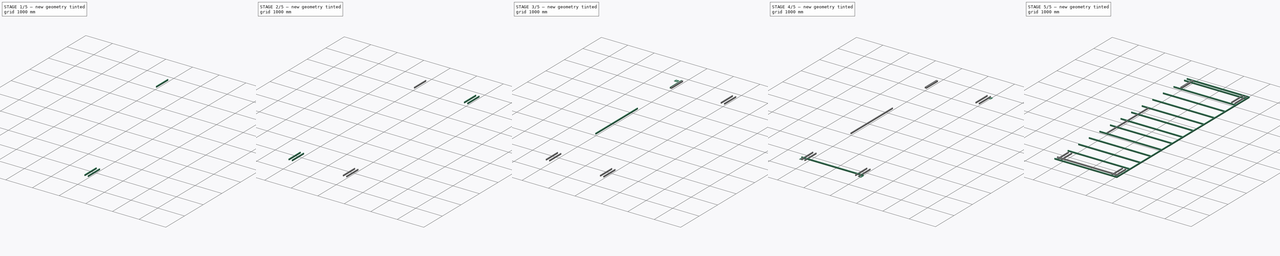
[diagram: build sequence overview — one tinted view per stage of 5, left to right]
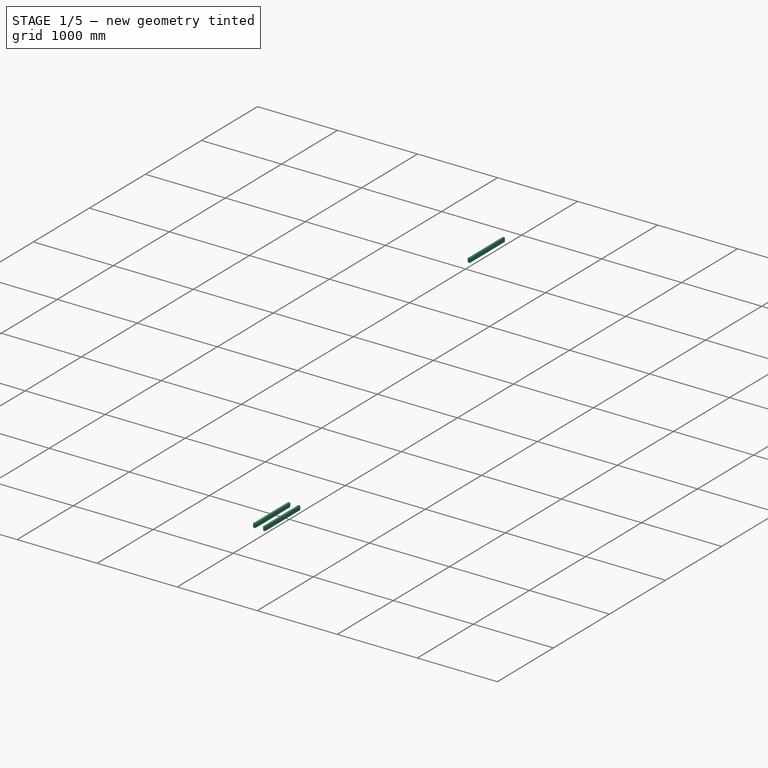
[diagram: stage 1 of 5 — iso view after this stage's code; geometry added in this stage tinted green]
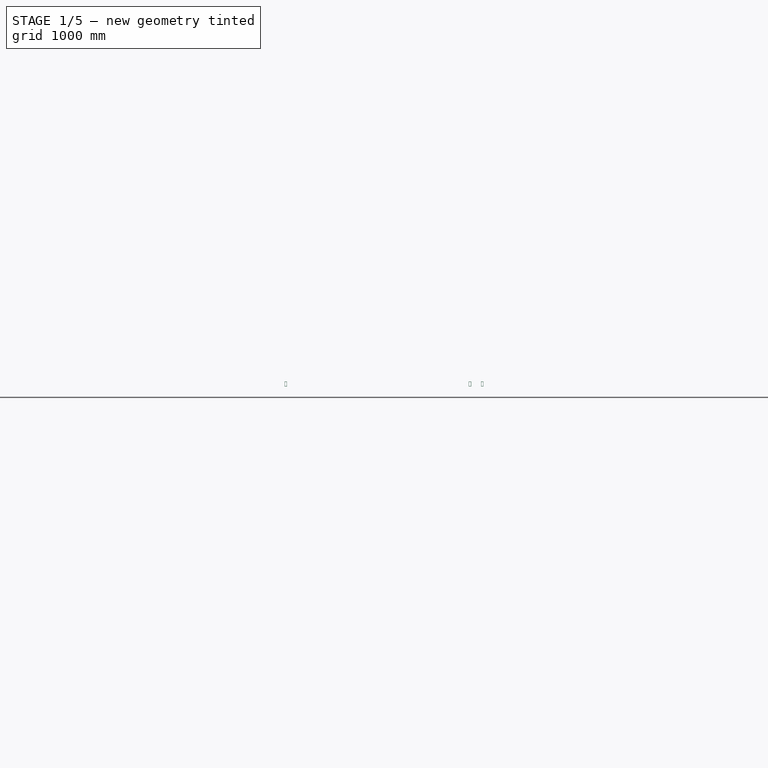
[diagram: stage 1 of 5 — front view after this stage's code; geometry added in this stage tinted green]
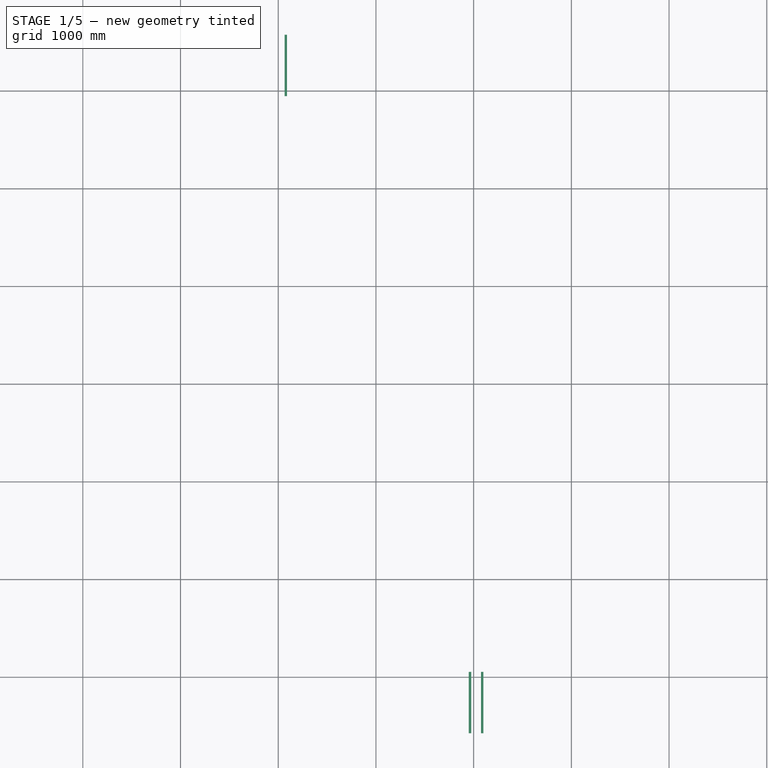
[diagram: stage 1 of 5 — top view after this stage's code; geometry added in this stage tinted green]
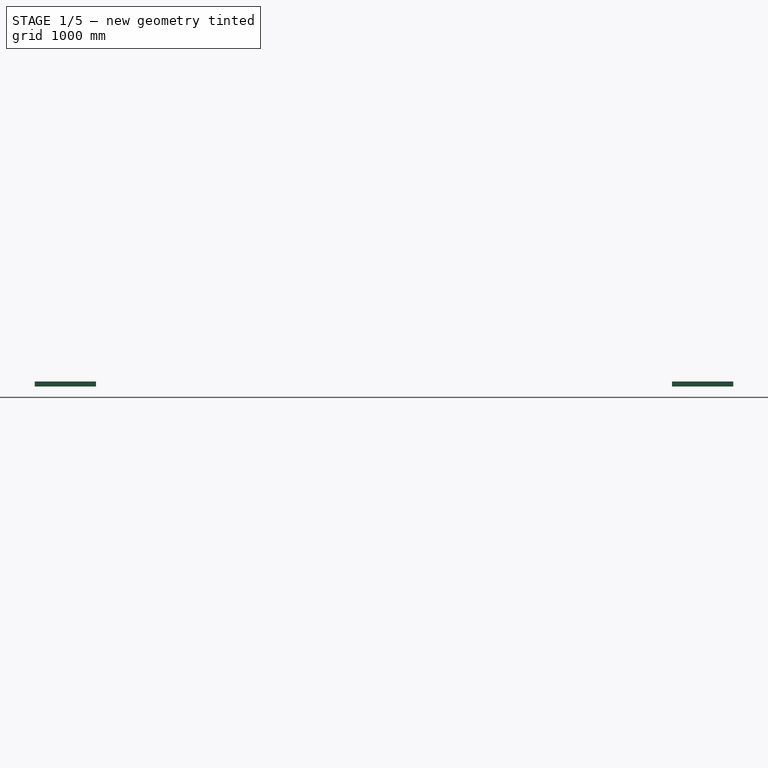
[diagram: stage 1 of 5 — right view after this stage's code; geometry added in this stage tinted green]
FCSTD DOCUMENT  (FreeCAD 0.19R18990 (Git))
Label: REMOVABLE DECK 7.2 X 2.4
License: All rights reserved
LicenseURL: http://en.wikipedia.org/wiki/All_rights_reserved
objects: Part::Part2DObjectPython×40, Part::FeaturePython×22, App::FeaturePython×20, App::DocumentObjectGroup×9, Sketcher::SketchObject×4, Part::Feature×3, Part::Offset2D×2, App::MaterialObjectPython×2, App::DocumentObjectGroupPython×1, App::GeometryPython×1, Part::Extrusion×1, Image::ImagePlane×1
note: 73 computed .brp shape members not serialized (recipe doc carries the construction recipe); baked Part::Feature solids carry a one-line shape summary decoded from their .brp

FEATURE [Part::FeaturePython] Structure006  label="BEAM - 50x25x3.0 RHS005"  # Arch/BIM 172 (typed FeaturePython)
  Base = -> Solid
  FaceMaker = 0
  Height = 1000
  HorizontalArea = 27599.9
  IfcData = attributes={"GlobalId": {"name": "GlobalId", "type": "IfcGloballyUniqueId", "is_enum": false, "enum_values": []}, "Description": {"... (+484 chars omitted),+1 more (map truncated)
  IfcType = 172
  Length = 0
  Material = -> Material
  MoveBase = false
  MoveWithHost = false
  NodesOffset = 0
  Normal = (0,0,0)
  PerimeterLength = 0
  PredefinedType = 0
  VerticalArea = 118755
  Width = 100
FEATURE [Part::FeaturePython] Structure012  label="BEAM - 50x25x3.0 RHS011"  # Arch/BIM 172 (typed FeaturePython)
  CloneOf = -> Structure006
  FaceMaker = 0
  Height = 1000
  HorizontalArea = 27599.9
  IfcData = attributes={"GlobalId": {"name": "GlobalId", "type": "IfcGloballyUniqueId", "is_enum": false, "enum_values": []}, "Description": {"... (+484 chars omitted),+1 more (map truncated)
  IfcType = 172
  Length = 0
  Material = -> Material
  MoveBase = false
  MoveWithHost = false
  Nodes = (2) [(-1.94289e-16,0,0),(-1.94289e-16,0,1000)]
  NodesOffset = 0
  Normal = (0,0,0)
  PerimeterLength = 0
  Placement = pos=(2050,-6522.7,0) rot=(0,0,1;0rad)
  PredefinedType = 0
  VerticalArea = 118755
  Width = 100
FEATURE [Part::FeaturePython] Structure013  label="BEAM - 50x25x3.0 RHS012"  # Arch/BIM 172 (typed FeaturePython)
  CloneOf = -> Structure006
  FaceMaker = 0
  Height = 1000
  HorizontalArea = 27599.9
  IfcData = attributes={"GlobalId": {"name": "GlobalId", "type": "IfcGloballyUniqueId", "is_enum": false, "enum_values": []}, "Description": {"... (+484 chars omitted),+1 more (map truncated)
  IfcType = 172
  Length = 0
  Material = -> Material
  MoveBase = false
  MoveWithHost = false
  Nodes = (2) [(-1.94289e-16,0,0),(-1.94289e-16,0,1000)]
  NodesOffset = 0
  Normal = (0,0,0)
  PerimeterLength = 0
  Placement = pos=(2175,-6522.7,0) rot=(0,0,1;0rad)
  PredefinedType = 0
  VerticalArea = 118755
  Width = 100
FEATURE [Part::Part2DObjectPython] Line008  # Draft 2D object (typed FeaturePython)
  Area = 0
  ChamferSize = 0
  Closed = false
  End = (1311.47,-3442.47,0)
  FilletRadius = 0
  Length = 136.473
  MakeFace = true
  Placement = pos=(1175,-3442.47,0) rot=(0,0,1;0rad)
  Points = (2) [(0,0,0),(136.473,0,0)]
  Start = (1175,-3442.47,0)
  Subdivisions = 0
FEATURE [Part::Part2DObjectPython] Rectangle022  # Draft 2D object (typed FeaturePython)
  Area = 1.61797e+07
  ChamferSize = 0
  Columns = 1
  FilletRadius = 0
  Height = 6884.97
  Length = 2350
  MakeFace = true
  Placement = pos=(-1175,-3442.47,0) rot=(0,0,1;0rad)
  Rows = 12
FEATURE [Part::Part2DObjectPython] Line009  # Draft 2D object (typed FeaturePython)
  Area = 0
  ChamferSize = 0
  Closed = false
  End = (1175,2816.59,0)
  FilletRadius = 0
  Length = 625.906
  MakeFace = true
  Placement = pos=(1175,3442.5,0) rot=(0,0,1;0rad)
  Points = (2) [(0,0,0),(-2.50111e-12,-625.906,0)]
  Start = (1175,3442.5,0)
  Subdivisions = 0
FEATURE [Part::FeaturePython] Structure016  label="BEAM - 50x25x3.0 RHS016"  # Arch/BIM 172 (typed FeaturePython)
  CloneOf = -> Structure006
  FaceMaker = 0
  Height = 1000
  HorizontalArea = 27599.9
  IfcData = attributes={"GlobalId": {"name": "GlobalId", "type": "IfcGloballyUniqueId", "is_enum": false, "enum_values": []}, "Description": {"... (+484 chars omitted),+1 more (map truncated)
  IfcType = 172
  Length = 0
  Material = -> Material
  MoveBase = false
  MoveWithHost = false
  Nodes = (2) [(-1.94289e-16,0,0),(-1.94289e-16,0,1000)]
  NodesOffset = 0
  Normal = (0,0,0)
  PerimeterLength = 0
  Placement = pos=(165,0,0) rot=(0,0,1;0rad)
  PredefinedType = 0
  VerticalArea = 118755
  Width = 100
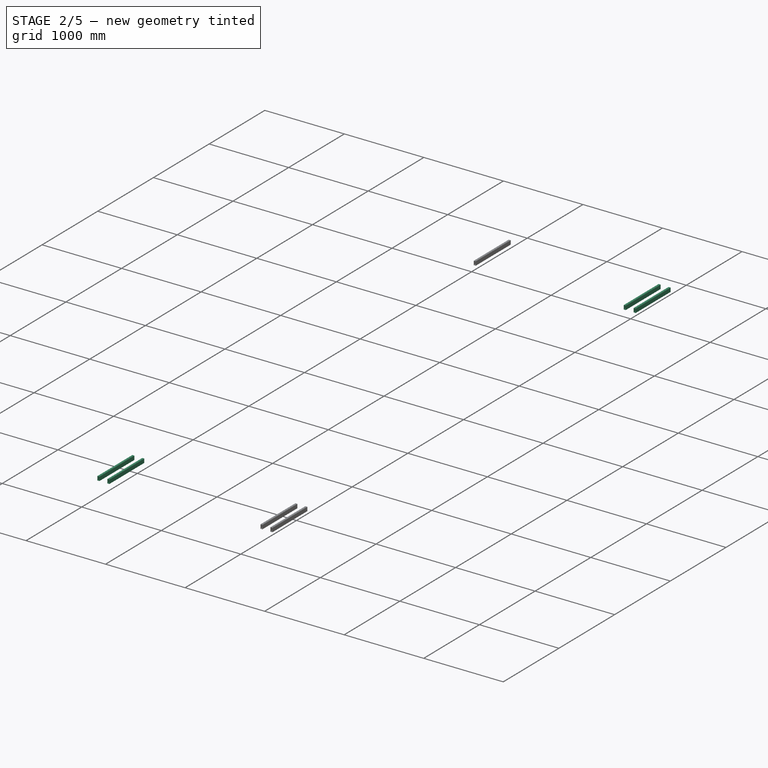
[diagram: stage 2 of 5 — iso view after this stage's code; geometry added in this stage tinted green]
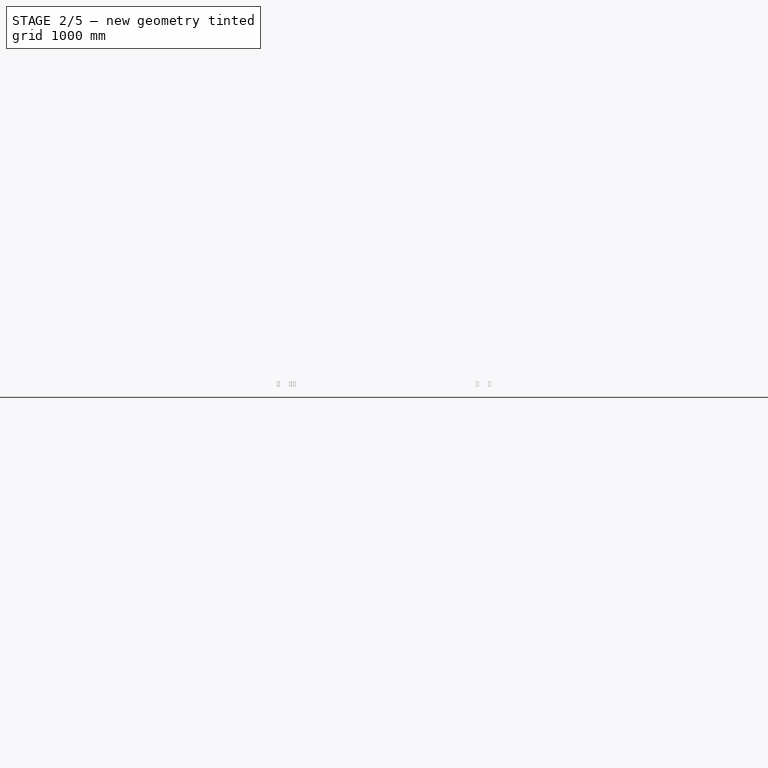
[diagram: stage 2 of 5 — front view after this stage's code; geometry added in this stage tinted green]
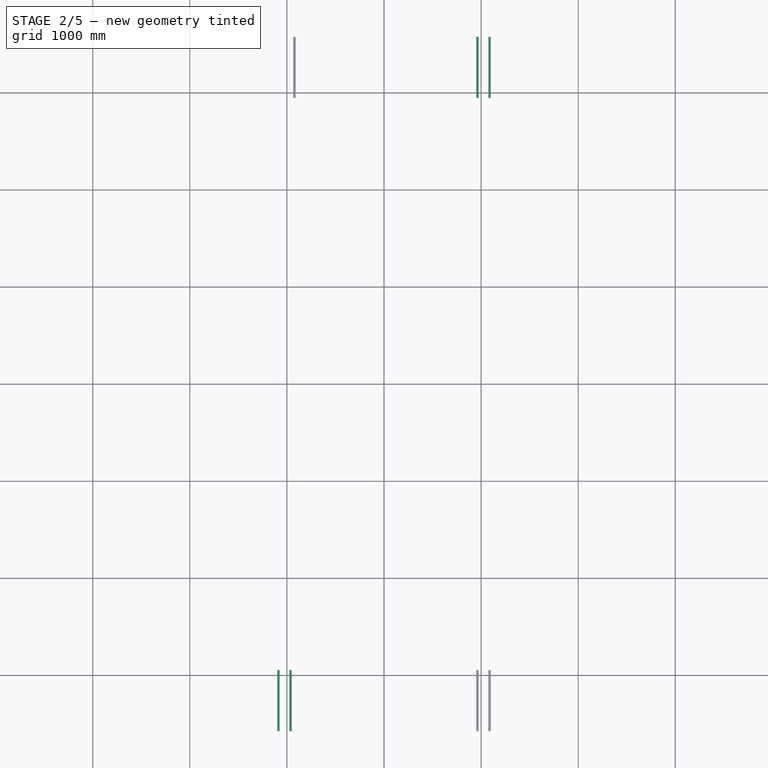
[diagram: stage 2 of 5 — top view after this stage's code; geometry added in this stage tinted green]
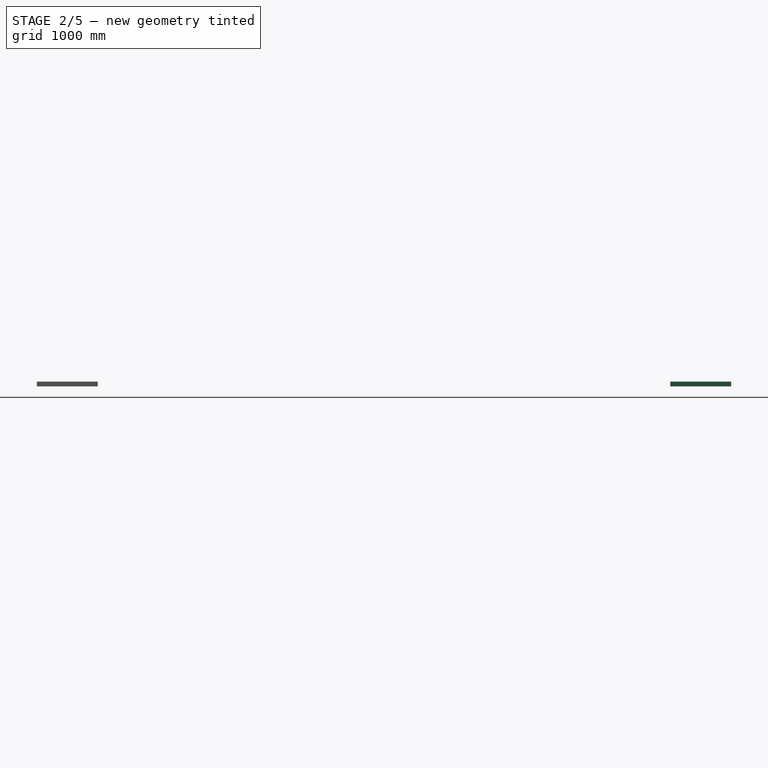
[diagram: stage 2 of 5 — right view after this stage's code; geometry added in this stage tinted green]
FEATURE [Part::FeaturePython] Structure008  label="BEAM - 50x25x3.0 RHS007"  # Arch/BIM 172 (typed FeaturePython)
  CloneOf = -> Structure006
  FaceMaker = 0
  Height = 1000
  HorizontalArea = 27599.9
  IfcData = attributes={"GlobalId": {"name": "GlobalId", "type": "IfcGloballyUniqueId", "is_enum": false, "enum_values": []}, "Description": {"... (+484 chars omitted),+1 more (map truncated)
  IfcType = 172
  Length = 0
  Material = -> Material
  MoveBase = false
  MoveWithHost = false
  Nodes = (2) [(-1.94289e-16,0,0),(-1.94289e-16,0,1000)]
  NodesOffset = 0
  Normal = (0,0,0)
  PerimeterLength = 0
  Placement = pos=(2050,0,0) rot=(0,0,1;0rad)
  PredefinedType = 0
  VerticalArea = 118755
  Width = 100
FEATURE [Part::FeaturePython] Structure009  label="BEAM - 50x25x3.0 RHS008"  # Arch/BIM 172 (typed FeaturePython)
  CloneOf = -> Structure006
  FaceMaker = 0
  Height = 1000
  HorizontalArea = 27599.9
  IfcData = attributes={"GlobalId": {"name": "GlobalId", "type": "IfcGloballyUniqueId", "is_enum": false, "enum_values": []}, "Description": {"... (+484 chars omitted),+1 more (map truncated)
  IfcType = 172
  Length = 0
  Material = -> Material
  MoveBase = false
  MoveWithHost = false
  Nodes = (2) [(-1.94289e-16,0,0),(-1.94289e-16,0,1000)]
  NodesOffset = 0
  Normal = (0,0,0)
  PerimeterLength = 0
  Placement = pos=(2175,0,0) rot=(0,0,1;0rad)
  PredefinedType = 0
  VerticalArea = 118755
  Width = 100
FEATURE [Part::FeaturePython] Structure010  label="BEAM - 50x25x3.0 RHS009"  # Arch/BIM 172 (typed FeaturePython)
  CloneOf = -> Structure006
  FaceMaker = 0
  Height = 1000
  HorizontalArea = 27599.9
  IfcData = attributes={"GlobalId": {"name": "GlobalId", "type": "IfcGloballyUniqueId", "is_enum": false, "enum_values": []}, "Description": {"... (+484 chars omitted),+1 more (map truncated)
  IfcType = 172
  Length = 0
  Material = -> Material
  MoveBase = false
  MoveWithHost = false
  Nodes = (2) [(-1.94289e-16,0,0),(-1.94289e-16,0,1000)]
  NodesOffset = 0
  Normal = (0,0,0)
  PerimeterLength = 0
  Placement = pos=(0,-6522.7,0) rot=(0,0,1;0rad)
  PredefinedType = 0
  VerticalArea = 118755
  Width = 100
FEATURE [Part::FeaturePython] Structure011  label="BEAM - 50x25x3.0 RHS010"  # Arch/BIM 172 (typed FeaturePython)
  CloneOf = -> Structure006
  FaceMaker = 0
  Height = 1000
  HorizontalArea = 27599.9
  IfcData = attributes={"GlobalId": {"name": "GlobalId", "type": "IfcGloballyUniqueId", "is_enum": false, "enum_values": []}, "Description": {"... (+484 chars omitted),+1 more (map truncated)
  IfcType = 172
  Length = 0
  Material = -> Material
  MoveBase = false
  MoveWithHost = false
  Nodes = (2) [(-1.94289e-16,0,0),(-1.94289e-16,0,1000)]
  NodesOffset = 0
  Normal = (0,0,0)
  PerimeterLength = 0
  Placement = pos=(125,-6522.7,0) rot=(0,0,1;0rad)
  PredefinedType = 0
  VerticalArea = 118755
  Width = 100
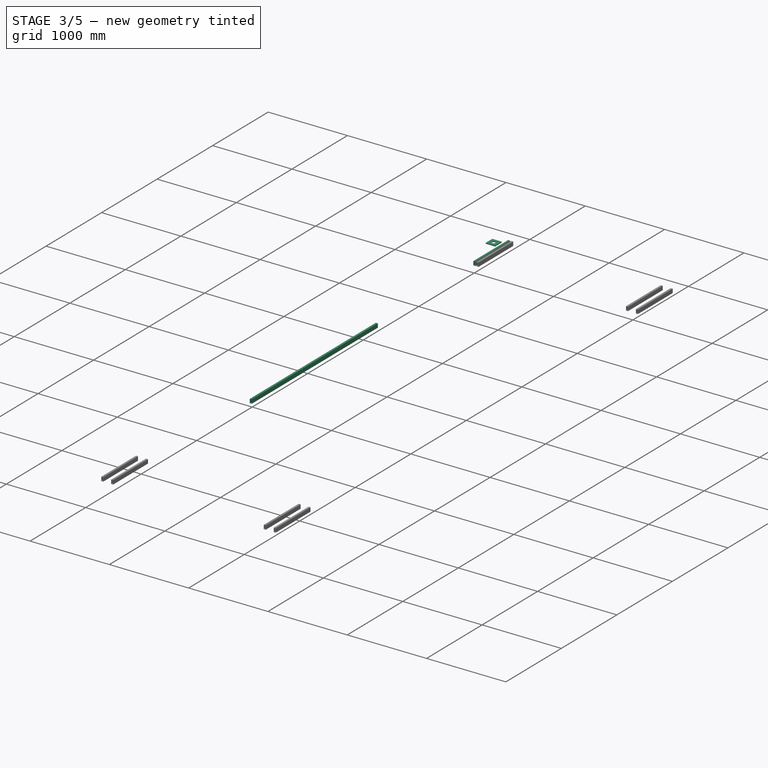
[diagram: stage 3 of 5 — iso view after this stage's code; geometry added in this stage tinted green]
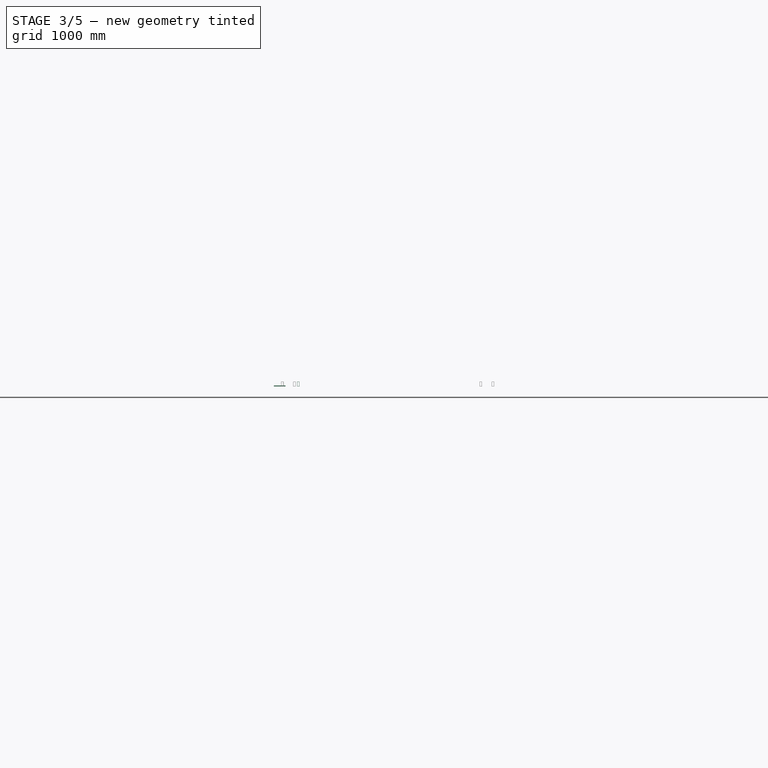
[diagram: stage 3 of 5 — front view after this stage's code; geometry added in this stage tinted green]
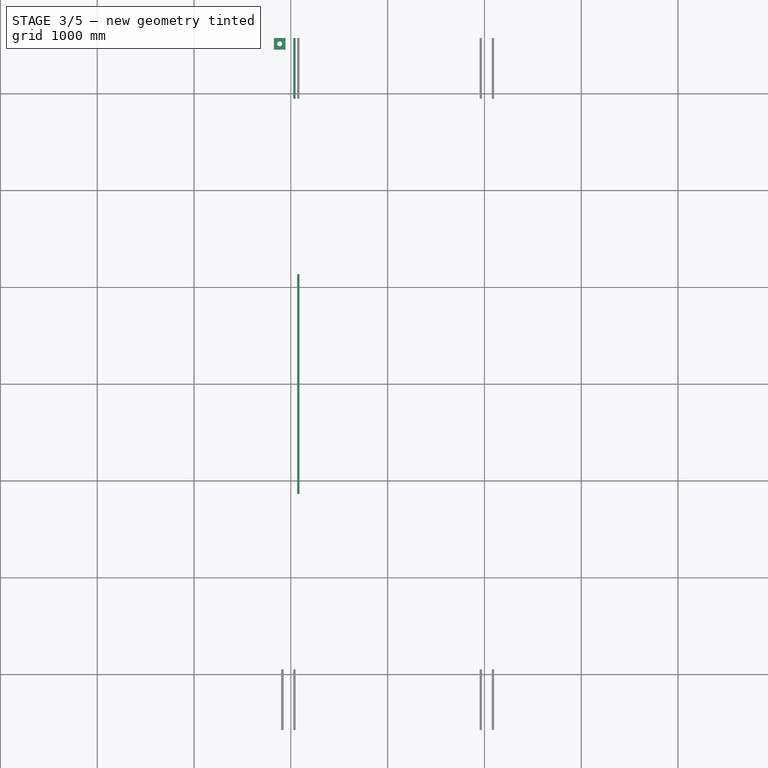
[diagram: stage 3 of 5 — top view after this stage's code; geometry added in this stage tinted green]
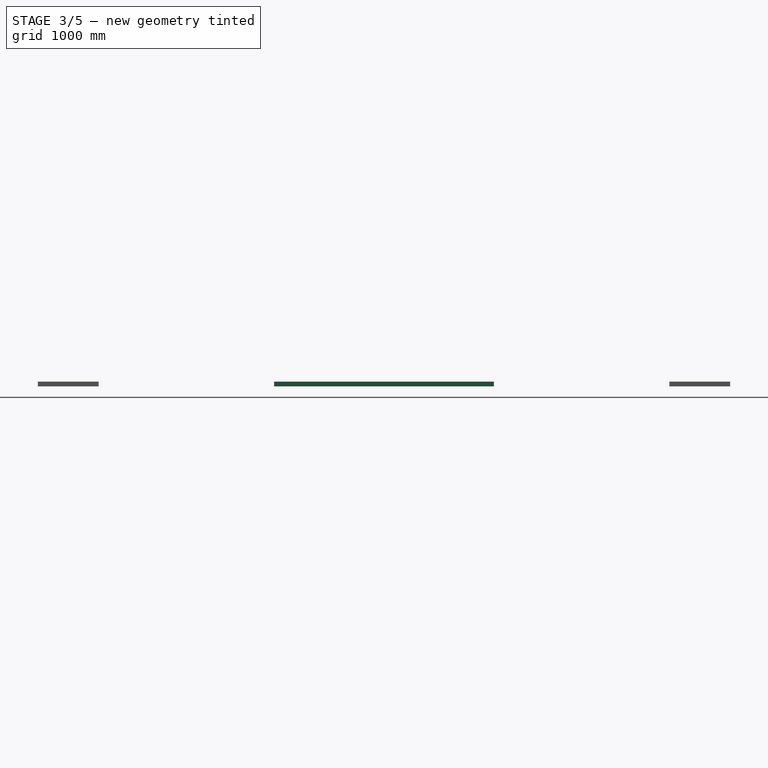
[diagram: stage 3 of 5 — right view after this stage's code; geometry added in this stage tinted green]
FEATURE [Sketcher::SketchObject] Sketch  label="Sketch - BASE SIZE"
  sketch-geometry (4):
    g0: LineSegment StartX=-1200 StartY=3600 StartZ=0 EndX=1200 EndY=3600 EndZ=0
    g1: LineSegment StartX=1200 StartY=3600 StartZ=0 EndX=1200 EndY=-3600 EndZ=0
    g2: LineSegment StartX=1200 StartY=-3600 StartZ=0 EndX=-1200 EndY=-3600 EndZ=0
    g3: LineSegment StartX=-1200 StartY=-3600 StartZ=0 EndX=-1200 EndY=3600 EndZ=0
  constraints (10):
    c: Coincident(g0,g1)
    c: Coincident(g1,g2)
    c: Coincident(g2,g3)
    c: Coincident(g3,g0)
    c: Horizontal(g2)
    c: Vertical(g1)
    c: DistanceY(g1,g1) = 7200  'LENGHT'
    c: DistanceX(g2,g2) = 2400  'WIDTH'
    c: Symmetric(g0,g2,g-1)
    c: Symmetric(g0,g0,g-2)
FEATURE [App::DocumentObjectGroup] Group  label="PROFILES"
FEATURE [Sketcher::SketchObject] Sketch002  label="Sketch 50x25mm"
  ExternalGeometry = -> [Sketch]
  Placement = pos=(0,0,0) rot=(1,0,0;1.5708rad)
  sketch-geometry (4):
    g0: LineSegment StartX=-1200 StartY=-7.603e-13 StartZ=0 EndX=-1175 EndY=-7.603e-13 EndZ=0
    g1: LineSegment StartX=-1175 StartY=-7.603e-13 StartZ=0 EndX=-1175 EndY=-50 EndZ=0
    g2: LineSegment StartX=-1175 StartY=-50 StartZ=0 EndX=-1200 EndY=-50 EndZ=0
    g3: LineSegment StartX=-1200 StartY=-50 StartZ=0 EndX=-1200 EndY=-7.603e-13 EndZ=0
  constraints (11):
    c: Coincident(g0,g1)
    c: Coincident(g1,g2)
    c: Coincident(g2,g3)
    c: Coincident(g3,g0)
    c: Horizontal(g0)
    c: Horizontal(g2)
    c: Vertical(g1)
    c: Vertical(g3)
    c: Coincident(g0,g-3)
    c: DistanceY(g3,g3) = 50
    c: DistanceX(g2,g2) = 25
FEATURE [Part::Offset2D] Offset2D001  label="PROFILE - 50x25x3.0 RHS"
  Fill = true
  Intersection = false
  Join = 0
  Mode = 1
  SelfIntersection = false
  Source = -> Sketch002
  Value = -3
FEATURE [Sketcher::SketchObject] Sketch003  label="Sketch 50x25mm001"
  ExternalGeometry = -> [Sketch]
  Placement = pos=(0,0,0) rot=(0.57735,0.57735,0.57735;2.0944rad)
  sketch-geometry (4):
    g0: LineSegment StartX=3600 StartY=0 StartZ=0 EndX=3575 EndY=0 EndZ=0
    g1: LineSegment StartX=3575 StartY=0 StartZ=0 EndX=3575 EndY=-50 EndZ=0
    g2: LineSegment StartX=3575 StartY=-50 StartZ=0 EndX=3600 EndY=-50 EndZ=0
    g3: LineSegment StartX=3600 StartY=-50 StartZ=0 EndX=3600 EndY=0 EndZ=0
  constraints (11):
    c: Coincident(g0,g1)
    c: Coincident(g1,g2)
    c: Coincident(g2,g3)
    c: Coincident(g3,g0)
    c: Horizontal(g0)
    c: Horizontal(g2)
    c: Vertical(g1)
    c: Vertical(g3)
    c: Coincident(g0,g-3)
    c: DistanceY(g1,g1) = 50
    c: DistanceX(g2,g2) = 25
FEATURE [Part::Offset2D] Offset2D  label="PROFILE - 50x25x3.0 RHS001"
  Fill = true
  Intersection = false
  Join = 0
  Mode = 1
  SelfIntersection = false
  Source = -> Sketch003
  Value = -3
FEATURE [App::FeaturePython] Dimension001  # Draft dimension (typed FeaturePython)
  Diameter = false
  Dimline = (1524,4267.2,0)
  Direction = (0,0,0)
  Distance = 2400
  End = (1200,3600,0)
  Normal = (0,0,1)
  Start = (-1200,3600,0)
FEATURE [App::FeaturePython] Dimension  # Draft dimension (typed FeaturePython)
  Diameter = false
  Dimline = (2133.6,-3048,0)
  Direction = (0,0,0)
  Distance = 7200
  End = (1200,-3600,0)
  Normal = (0,0,1)
  Start = (1200,3600,0)
FEATURE [Part::Part2DObjectPython] Line  # Draft 2D object (typed FeaturePython)
  Area = 0
  ChamferSize = 0
  Closed = false
  End = (-1425.59,3587.5,0)
  FilletRadius = 0
  Length = 2967.82
  MakeFace = true
  Placement = pos=(-1175,3587.5,0) rot=(0,0,1;0rad)
  Points = (2) [(2717.23,0,0),(-250.589,0,0)]
  Start = (1542.23,3587.5,0)
  Subdivisions = 0
FEATURE [Part::Part2DObjectPython] Line001  # Draft 2D object (typed FeaturePython)
  Area = 0
  ChamferSize = 0
  Closed = false
  End = (-1425.59,-3587.5,0)
  FilletRadius = 0
  Length = 2967.82
  MakeFace = true
  Placement = pos=(-1175,-3587.5,0) rot=(0,0,1;0rad)
  Points = (2) [(2717.23,0,0),(-250.589,0,0)]
  Start = (1542.23,-3587.5,0)
  Subdivisions = 0
FEATURE [Part::FeaturePython] Axis  label="Axes"  # WARN: FeaturePython — macro-defined, semantics opaque (R4)
  Angles = [0,0,0,0,0,0,0,0,0,0,0,0,0,0,0]
  Distances = [0,145,573.75,573.75,573.75,573.75,573.75,573.75,573.75,573.75,573.75,573.75,573.75,573.75,145]
  Length = 3500
  Placement = pos=(-1753.95,3587.5,0) rot=(0,0,-1;1.5708rad)
FEATURE [Part::Part2DObjectPython] Rectangle  # Draft 2D object (typed FeaturePython)
  Area = 1.70406e+07
  ChamferSize = 0
  Columns = 1
  FilletRadius = 0
  Height = 7175
  Length = 2375
  MakeFace = true
  Placement = pos=(-1175,-3587.5,0) rot=(0,0,1;0rad)
  Rows = 11
FEATURE [App::FeaturePython] Dimension002  # Draft dimension (typed FeaturePython)
  Diameter = false
  Dimline = (-1019.13,3157.35,0)
  Direction = (0,0,0)
  Distance = 652.273
  End = (-1175,2935.23,0)
  Normal = (0,0,1)
  Start = (-1175,3587.5,0)
FEATURE [App::FeaturePython] Dimension003  # Draft dimension (typed FeaturePython)
  Diameter = false
  Dimline = (-849.897,3156.56,0)
  Direction = (0,0,0)
  Distance = 652.273
  End = (-1175,2935.23,0)
  Normal = (0,0,1)
  Start = (-1175,3587.5,0)
FEATURE [Part::Part2DObjectPython] Rectangle001  # Draft 2D object (typed FeaturePython)
  Area = 625
  ChamferSize = 0
  Columns = 1
  FilletRadius = 0
  Height = 25
  Length = 25
  MakeFace = true
  Placement = pos=(-1175,3550,-2.3831e-12) rot=(0,0,1;0rad)
  Rows = 1
FEATURE [Part::Part2DObjectPython] Rectangle002  # Draft 2D object (typed FeaturePython)
  Area = 625
  ChamferSize = 0
  Columns = 1
  FilletRadius = 0
  Height = 25
  Length = 25
  MakeFace = true
  Placement = pos=(-1150,3550,-2.3831e-12) rot=(0,0,1;0rad)
  Rows = 1
FEATURE [Part::Part2DObjectPython] Rectangle003  # Draft 2D object (typed FeaturePython)
  Area = 625
  ChamferSize = 0
  Columns = 1
  FilletRadius = 0
  Height = 25
  Length = 25
  MakeFace = true
  Placement = pos=(-1100,3550,-2.3831e-12) rot=(0,0,1;0rad)
  Rows = 1
FEATURE [Part::Part2DObjectPython] Rectangle004  # Draft 2D object (typed FeaturePython)
  Area = 625
  ChamferSize = 0
  Columns = 1
  FilletRadius = 0
  Height = 25
  Length = 25
  MakeFace = true
  Placement = pos=(-1075,3550,-2.3831e-12) rot=(0,0,1;0rad)
  Rows = 1
FEATURE [Part::Part2DObjectPython] Rectangle005  # Draft 2D object (typed FeaturePython)
  Area = 625
  ChamferSize = 0
  Columns = 1
  FilletRadius = 0
  Height = 25
  Length = 25
  MakeFace = true
  Placement = pos=(-1050,3550,-2.3831e-12) rot=(0,0,1;0rad)
  Rows = 1
FEATURE [Part::Part2DObjectPython] Rectangle006  # Draft 2D object (typed FeaturePython)
  Area = 625
  ChamferSize = 0
  Columns = 1
  FilletRadius = 0
  Height = 25
  Length = 25
  MakeFace = true
  Placement = pos=(-1025,3550,-2.3831e-12) rot=(0,0,1;0rad)
  Rows = 1
FEATURE [Part::Part2DObjectPython] Rectangle007  # Draft 2D object (typed FeaturePython)
  Area = 625
  ChamferSize = 0
  Columns = 1
  FilletRadius = 0
  Height = 25
  Length = 25
  MakeFace = true
  Placement = pos=(-1000,3550,-2.3831e-12) rot=(0,0,1;0rad)
  Rows = 1
FEATURE [Part::Part2DObjectPython] Rectangle008  # Draft 2D object (typed FeaturePython)
  Area = 625
  ChamferSize = 0
  Columns = 1
  FilletRadius = 0
  Height = 25
  Length = 25
  MakeFace = true
  Placement = pos=(-1125,3550,-2.3831e-12) rot=(0,0,1;0rad)
  Rows = 1
FEATURE [Part::Part2DObjectPython] Line002  # Draft 2D object (typed FeaturePython)
  Area = 0
  ChamferSize = 0
  Closed = false
  End = (-1087.5,3651.53,0)
  FilletRadius = 0
  Length = 101.533
  MakeFace = true
  Placement = pos=(-1087.5,3550,0) rot=(0,0,1;0rad)
  Points = (2) [(0,0,0),(0,101.533,0)]
  Start = (-1087.5,3550,0)
  Subdivisions = 0
FEATURE [Part::Part2DObjectPython] Rectangle009  # Draft 2D object (typed FeaturePython)
  Area = 625
  ChamferSize = 0
  Columns = 1
  FilletRadius = 0
  Height = 25
  Length = 25
  MakeFace = true
  Placement = pos=(-975,3550,-2.3831e-12) rot=(0,0,1;0rad)
  Rows = 1
FEATURE [Part::Part2DObjectPython] Line003  # Draft 2D object (typed FeaturePython)
  Area = 0
  ChamferSize = 0
  Closed = false
  End = (-962.5,3651.53,0)
  FilletRadius = 0
  Length = 101.533
  MakeFace = true
  Placement = pos=(-962.5,3550,0) rot=(0,0,1;0rad)
  Points = (2) [(0,0,0),(0,101.533,0)]
  Start = (-962.5,3550,0)
  Subdivisions = 0
FEATURE [App::FeaturePython] Dimension004  # Draft dimension (typed FeaturePython)
  Diameter = false
  Dimline = (-1099.14,3684.68,0)
  Direction = (0,0,0)
  Distance = 100
  End = (-1087.5,3600,0)
  Normal = (0,0,1)
  Start = (-1187.5,3600,0)
FEATURE [Part::Part2DObjectPython] Rectangle010  # Draft 2D object (typed FeaturePython)
  Area = 625
  ChamferSize = 0
  Columns = 1
  FilletRadius = 0
  Height = 25
  Length = 25
  MakeFace = true
  Placement = pos=(1100,3550,-2.3831e-12) rot=(0,0,1;0rad)
  Rows = 1
FEATURE [Part::Part2DObjectPython] Rectangle011  # Draft 2D object (typed FeaturePython)
  Area = 625
  ChamferSize = 0
  Columns = 1
  FilletRadius = 0
  Height = 25
  Length = 25
  MakeFace = true
  Placement = pos=(1125,3550,-2.3831e-12) rot=(0,0,1;0rad)
  Rows = 1
FEATURE [Part::Part2DObjectPython] Rectangle012  # Draft 2D object (typed FeaturePython)
  Area = 625
  ChamferSize = 0
  Columns = 1
  FilletRadius = 0
  Height = 25
  Length = 25
  MakeFace = true
  Placement = pos=(1150,3550,-2.3831e-12) rot=(0,0,1;0rad)
  Rows = 1
FEATURE [Part::Part2DObjectPython] Line004  # Draft 2D object (typed FeaturePython)
  Area = 0
  ChamferSize = 0
  Closed = false
  End = (1087.5,3651.53,0)
  FilletRadius = 0
  Length = 101.533
  MakeFace = true
  Placement = pos=(1087.5,3550,0) rot=(0,0,1;0rad)
  Points = (2) [(0,0,0),(0,101.533,0)]
  Start = (1087.5,3550,0)
  Subdivisions = 0
FEATURE [Part::Part2DObjectPython] Rectangle013  # Draft 2D object (typed FeaturePython)
  Area = 625
  ChamferSize = 0
  Columns = 1
  FilletRadius = 0
  Height = 25
  Length = 25
  MakeFace = true
  Placement = pos=(1075,3550,-2.3831e-12) rot=(0,0,1;0rad)
  Rows = 1
FEATURE [Part::Part2DObjectPython] Rectangle014  # Draft 2D object (typed FeaturePython)
  Area = 625
  ChamferSize = 0
  Columns = 1
  FilletRadius = 0
  Height = 25
  Length = 25
  MakeFace = true
  Placement = pos=(975,3550,-2.3831e-12) rot=(0,0,1;0rad)
  Rows = 1
FEATURE [Part::Part2DObjectPython] Rectangle015  # Draft 2D object (typed FeaturePython)
  Area = 625
  ChamferSize = 0
  Columns = 1
  FilletRadius = 0
  Height = 25
  Length = 25
  MakeFace = true
  Placement = pos=(1000,3550,-2.3831e-12) rot=(0,0,1;0rad)
  Rows = 1
FEATURE [Part::Part2DObjectPython] Rectangle016  # Draft 2D object (typed FeaturePython)
  Area = 625
  ChamferSize = 0
  Columns = 1
  FilletRadius = 0
  Height = 25
  Length = 25
  MakeFace = true
  Placement = pos=(1025,3550,-2.3831e-12) rot=(0,0,1;0rad)
  Rows = 1
FEATURE [Part::Part2DObjectPython] Rectangle017  # Draft 2D object (typed FeaturePython)
  Area = 625
  ChamferSize = 0
  Columns = 1
  FilletRadius = 0
  Height = 25
  Length = 25
  MakeFace = true
  Placement = pos=(1050,3550,-2.3831e-12) rot=(0,0,1;0rad)
  Rows = 1
FEATURE [Part::Part2DObjectPython] Line005  # Draft 2D object (typed FeaturePython)
  Area = 0
  ChamferSize = 0
  Closed = false
  End = (962.5,3651.53,0)
  FilletRadius = 0
  Length = 101.533
  MakeFace = true
  Placement = pos=(962.5,3550,0) rot=(0,0,1;0rad)
  Points = (2) [(0,0,0),(0,101.533,0)]
  Start = (962.5,3550,0)
  Subdivisions = 0
FEATURE [Part::Part2DObjectPython] Rectangle018  # Draft 2D object (typed FeaturePython)
  Area = 625
  ChamferSize = 0
  Columns = 1
  FilletRadius = 0
  Height = 25
  Length = 25
  MakeFace = true
  Placement = pos=(950,3550,-2.3831e-12) rot=(0,0,1;0rad)
  Rows = 1
FEATURE [App::FeaturePython] Dimension006  # Draft dimension (typed FeaturePython)
  Diameter = false
  Dimline = (29.918,3794.91,0)
  Direction = (0,0,0)
  Distance = 1925
  End = (962.5,3651.53,0)
  Normal = (0,0,1)
  Start = (-962.5,3651.53,0)
FEATURE [App::FeaturePython] Dimension007  # Draft dimension (typed FeaturePython)
  Diameter = false
  Dimline = (939.938,3887.39,0)
  Direction = (0,0,0)
  Distance = 125
  End = (1087.5,3651.53,0)
  Normal = (0,0,1)
  Start = (962.5,3651.53,0)
FEATURE [App::FeaturePython] Dimension008  # Draft dimension (typed FeaturePython)
  Diameter = false
  Dimline = (1069.33,3721.72,0)
  Direction = (0,0,0)
  Distance = 100
  End = (1187.5,3651.53,0)
  Normal = (0,0,1)
  Start = (1087.5,3651.53,0)
FEATURE [Part::FeaturePython] Axis001  label="Axes001"  # WARN: FeaturePython — macro-defined, semantics opaque (R4)
  Angles = [0,0,0,0,0,0]
  Distances = [0,100,165,1925,125,100]
  Length = 8000
  Placement = pos=(-1187.5,-4122.03,0) rot=(0,0,1;0rad)
FEATURE [Part::Feature] Solid
  shape: bbox 25 x 627.3 x 50 mm, 10 faces (baked)
FEATURE [App::FeaturePython] Dimension005  # Draft dimension (typed FeaturePython)
  Diameter = false
  Dimline = (-933.861,3464.95,0)
  Direction = (0,0,0)
  Distance = 125
  End = (-962.5,3550,0)
  Normal = (0,0,1)
  Start = (-1087.5,3550,0)
FEATURE [App::FeaturePython] Dimension009  # Draft dimension (typed FeaturePython)
  Diameter = false
  Dimline = (1588.56,3138.59,0)
  Direction = (0,0,0)
  Distance = 652.27
  End = (1746.05,2935.23,0)
  Normal = (0,0,1)
  Start = (1746.05,3587.5,0)
FEATURE [App::FeaturePython] Dimension010  # Draft dimension (typed FeaturePython)
  Diameter = false
  Dimline = (1588.56,2935.23,0)
  Direction = (0,0,0)
  Distance = 652.27
  End = (1746.05,2282.96,0)
  Normal = (0,0,1)
  Start = (1746.05,2935.23,0)
FEATURE [App::FeaturePython] Dimension011  # Draft dimension (typed FeaturePython)
  Diameter = false
  Dimline = (1588.56,2282.96,0)
  Direction = (0,0,0)
  Distance = 652.27
  End = (1746.05,1630.69,0)
  Normal = (0,0,1)
  Start = (1746.05,2282.96,0)
FEATURE [App::FeaturePython] Dimension012  # Draft dimension (typed FeaturePython)
  Diameter = false
  Dimline = (1588.56,1630.69,0)
  Direction = (0,0,0)
  Distance = 652.27
  End = (1746.05,978.42,0)
  Normal = (0,0,1)
  Start = (1746.05,1630.69,0)
FEATURE [App::FeaturePython] Dimension013  # Draft dimension (typed FeaturePython)
  Diameter = false
  Dimline = (1588.56,978.42,0)
  Direction = (0,0,0)
  Distance = 652.27
  End = (1746.05,326.15,0)
  Normal = (0,0,1)
  Start = (1746.05,978.42,0)
FEATURE [App::FeaturePython] Dimension014  # Draft dimension (typed FeaturePython)
  Diameter = false
  Dimline = (1588.56,326.15,0)
  Direction = (0,0,0)
  Distance = 652.27
  End = (1746.05,-326.12,0)
  Normal = (0,0,1)
  Start = (1746.05,326.15,0)
FEATURE [App::FeaturePython] Dimension015  # Draft dimension (typed FeaturePython)
  Diameter = false
  Dimline = (1588.56,-326.12,0)
  Direction = (0,0,0)
  Distance = 652.27
  End = (1746.05,-978.39,0)
  Normal = (0,0,1)
  Start = (1746.05,-326.12,0)
FEATURE [App::FeaturePython] Dimension016  # Draft dimension (typed FeaturePython)
  Diameter = false
  Dimline = (1588.56,-978.39,0)
  Direction = (0,0,0)
  Distance = 652.27
  End = (1746.05,-1630.66,0)
  Normal = (0,0,1)
  Start = (1746.05,-978.39,0)
FEATURE [App::FeaturePython] Dimension017  # Draft dimension (typed FeaturePython)
  Diameter = false
  Dimline = (1588.56,-1630.66,0)
  Direction = (0,0,0)
  Distance = 652.27
  End = (1746.05,-2282.93,0)
  Normal = (0,0,1)
  Start = (1746.05,-1630.66,0)
FEATURE [App::FeaturePython] Dimension018  # Draft dimension (typed FeaturePython)
  Diameter = false
  Dimline = (1588.56,-2282.93,0)
  Direction = (0,0,0)
  Distance = 652.27
  End = (1746.05,-2935.2,0)
  Normal = (0,0,1)
  Start = (1746.05,-2282.93,0)
FEATURE [App::FeaturePython] Dimension019  # Draft dimension (typed FeaturePython)
  Diameter = false
  Dimline = (1588.56,-2935.2,0)
  Direction = (0,0,0)
  Distance = 652.27
  End = (1746.05,-3587.47,0)
  Normal = (0,0,1)
  Start = (1746.05,-2935.2,0)
FEATURE [App::DocumentObjectGroup] Group004  label="ANNOTATIONS"
  Group = -> [Dimension001,Dimension,Dimension016,Dimension011,Dimension010,Dimension009,Dimension012,Dimension013,Dimension014,Dimension015,Dimension017,Dimension018,Dimension019]
FEATURE [App::DocumentObjectGroup] Group005  label="Shorter"
FEATURE [App::MaterialObjectPython] Material  label="BEAM - 50x25x3.0 RHS013"  # material (typed FeaturePython)
  Material = DiffuseColor=(0.6399999856948853, 0.699999988079071, 0.6700000166893005); Name=BEAM - 50x25x3.0 RHS013; Transparency=0
  Transparency = 0
FEATURE [Part::FeaturePython] Structure  label="BEAM - 50x25x3.0 RHS"  # Arch/BIM 7 (typed FeaturePython)
  Base = -> Offset2D001
  FaceMaker = 0
  Height = 100
  HorizontalArea = 316800
  IfcData = attributes={"GlobalId": {"name": "GlobalId", "type": "IfcGloballyUniqueId", "is_enum": false, "enum_values": []}, "Description": {"... (+475 chars omitted),+1 more (map truncated)
  IfcType = 7
  Length = 7200
  Material = -> Material
  MoveBase = false
  MoveWithHost = false
  Nodes = (2) [(-1187.5,3.08056e-14,-25),(-1187.5,3.08056e-14,7175)]
  NodesOffset = 0
  Normal = (0,0,0)
  PerimeterLength = 14600
  Placement = pos=(0,-3600,0) rot=(0,0,1;0rad)
  PredefinedType = 0
  VerticalArea = 1354428
  Width = 100
FEATURE [Part::FeaturePython] Structure003  label="BEAM - 50x25x3.0 RHS002"  # Arch/BIM 7 (typed FeaturePython)
  Base = -> Offset2D
  FaceMaker = 0
  Height = 100
  HorizontalArea = 103400
  IfcData = attributes={"GlobalId": {"name": "GlobalId", "type": "IfcGloballyUniqueId", "is_enum": false, "enum_values": []}, "Description": {"... (+475 chars omitted),+1 more (map truncated)
  IfcType = 7
  Length = 2350
  Material = -> Material
  MoveBase = false
  MoveWithHost = false
  Nodes = (2) [(-5.55112e-15,3587.5,-25),(-5.55112e-15,3587.5,2325)]
  NodesOffset = 0
  Normal = (0,0,0)
  PerimeterLength = 4750
  Placement = pos=(1175,7175,0) rot=(0,0,1;3.14159rad)
  PredefinedType = 0
  VerticalArea = 442628
  Width = 100
FEATURE [Part::FeaturePython] Structure007  label="BEAM - 50x25x3.0 RHS006"  # Arch/BIM 172 (typed FeaturePython)
  CloneOf = -> Structure006
  FaceMaker = 0
  Height = 1000
  HorizontalArea = 27599.9
  IfcData = attributes={"GlobalId": {"name": "GlobalId", "type": "IfcGloballyUniqueId", "is_enum": false, "enum_values": []}, "Description": {"... (+484 chars omitted),+1 more (map truncated)
  IfcType = 172
  Length = 0
  Material = -> Material
  MoveBase = false
  MoveWithHost = false
  Nodes = (2) [(-1.94289e-16,0,0),(-1.94289e-16,0,1000)]
  NodesOffset = 0
  Normal = (0,0,0)
  PerimeterLength = 0
  Placement = pos=(125,0,0) rot=(0,0,1;0rad)
  PredefinedType = 0
  VerticalArea = 118755
  Width = 100
FEATURE [Part::Part2DObjectPython] Line010  # Draft 2D object (typed FeaturePython)
  Area = 0
  ChamferSize = 0
  Closed = false
  End = (-910,3515,0)
  FilletRadius = 0
  Length = 25
  MakeFace = true
  Placement = pos=(-935,3515,0) rot=(0,0,1;0rad)
  Points = (2) [(0,0,0),(25,0,0)]
  Start = (-935,3515,0)
  Subdivisions = 0
FEATURE [Part::Part2DObjectPython] Line011  # Draft 2D object (typed FeaturePython)
  Area = 0
  ChamferSize = 0
  Closed = false
  End = (-922.5,3629.48,0)
  FilletRadius = 0
  Length = 114.484
  MakeFace = true
  Placement = pos=(-922.5,3515,0) rot=(0,0,1;0rad)
  Points = (2) [(0,0,0),(0,114.484,0)]
  Start = (-922.5,3515,0)
  Subdivisions = 0
FEATURE [Part::Part2DObjectPython] Line012  # Draft 2D object (typed FeaturePython)
  Area = 0
  ChamferSize = 0
  Closed = false
  End = (-1187.5,3629.48,0)
  FilletRadius = 0
  Length = 265
  MakeFace = true
  Placement = pos=(-922.5,3629.48,0) rot=(0,0,1;0rad)
  Points = (2) [(0,0,0),(-265,0,0)]
  Start = (-922.5,3629.48,0)
  Subdivisions = 0
FEATURE [Part::Part2DObjectPython] Line013  # Draft 2D object (typed FeaturePython)
  Area = 0
  ChamferSize = 0
  Closed = false
  End = (-1087.5,3515,0)
  FilletRadius = 0
  Length = 165
  MakeFace = true
  Placement = pos=(-922.5,3515,0) rot=(0,0,1;0rad)
  Points = (2) [(0,0,0),(-165,0,0)]
  Start = (-922.5,3515,0)
  Subdivisions = 0
FEATURE [App::DocumentObjectGroup] Construction
  Group = -> [Line,Line001,Rectangle,Rectangle001,Rectangle002,Line002,Rectangle003,Rectangle004,Rectangle005,Rectangle006,Rectangle007,Rectangle008,Rectangle009,Line003,Dimension004,Dimension005,Rectangle010,Rectangle011,Rectangle012,Line004,Rectangle013,Rectangle014,Rectangle015,Rectangle016,Rectangle017,Line005,Rectangle018,Dimension006,Dimension007,Dimension008,Dimension002,Dimension003,Rectangle019,+13 more]
FEATURE [Part::Part2DObjectPython] Rectangle024  # Draft 2D object (typed FeaturePython)
  Area = 14400
  ChamferSize = 0
  Columns = 1
  FilletRadius = 0
  Height = 120
  Length = 120
  MakeFace = true
  Placement = pos=(-1055,3455,-50) rot=(0,1,0;3.14159rad)
  Rows = 1
FEATURE [Sketcher::SketchObject] Sketch004  label="125mm X 125mm X r25mm X 10mm"
  ExternalGeometry = -> [Structure003,Structure]
  Placement = pos=(0,0,-50) rot=(0,1,0;3.14159rad)
  sketch-geometry (7):
    g0: LineSegment StartX=1055 StartY=3455 StartZ=0 EndX=1175 EndY=3455 EndZ=0
    g1: LineSegment StartX=1175 StartY=3455 StartZ=0 EndX=1175 EndY=3575 EndZ=0
    g2: LineSegment StartX=1175 StartY=3575 StartZ=0 EndX=1055 EndY=3575 EndZ=0
    g3: LineSegment StartX=1055 StartY=3575 StartZ=0 EndX=1055 EndY=3455 EndZ=0
    g4: LineSegment [constr] StartX=1055 StartY=3515 StartZ=0 EndX=1115 EndY=3515 EndZ=0
    g5: LineSegment [constr] StartX=1115 StartY=3515 StartZ=0 EndX=1115 EndY=3575 EndZ=0
    g6: Circle CenterX=1115 CenterY=3515 CenterZ=0 NormalX=0 NormalY=0 NormalZ=1 AngleXU=0 Radius=25
  constraints (19):
    c: Horizontal(g0)
    c: Vertical(g1)
    c: Horizontal(g2)
    c: Vertical(g3)
    c: Vertical(g5)
    c: Horizontal(g4)
    c: DistanceX(g3,g1) = 120
    c: PointOnObject(g1,g-4)
    c: Coincident(g1,g0)
    c: Coincident(g2,g3)
    c: Coincident(g0,g3)
    c: PointOnObject(g1,g-3)
    c: Coincident(g2,g1)
    c: Radius(g6) = 25
    c: Symmetric(g2,g0,g4)
    c: Coincident(g4,g5)
    c: Symmetric(g1,g2,g5)
    c: Coincident(g4,g6)
    c: DistanceY(g3,g3) = 120
FEATURE [App::MaterialObjectPython] Material001  label="LOCK PLATE CORNER - 125x125x10xR25"  # material (typed FeaturePython)
  Material = Color=(0.6399938963912413, 0.6999923704890516, 0.6699931334401464),DiffuseColor=(0.6399938963912413, 0.6999923704890516, 0.6699931334401464),+3 more (map truncated)
  Transparency = 0
FEATURE [App::DocumentObjectGroupPython] MaterialContainer  label="Materials"  # scripted group (container) (typed FeaturePython)
  Group = -> [Material,Material001]
FEATURE [Part::FeaturePython] Panel  label="LOCK PLATE CORNER"  # Arch/BIM 99 (typed FeaturePython)
  Area = 12436.5
  Base = -> Sketch004
  FaceMaker = 0
  HorizontalArea = 0
  IfcData = attributes={"GlobalId": {"name": "GlobalId", "type": "IfcGloballyUniqueId", "is_enum": false, "enum_values": []}, "Description": {"... (+448 chars omitted),+1 more (map truncated)
  IfcType = 99
  Length = 0
  Material = -> Material001
  MoveBase = false
  MoveWithHost = false
  Normal = (0,0,1)
  PerimeterLength = 0
  PredefinedType = 0
  Sheets = 1
  Thickness = 10
  VerticalArea = 0
  WaveBottom = false
  WaveDirection = 0
  WaveHeight = 0
  WaveLength = 0
  WaveOffset = 0
  WaveType = 0
  Width = 0
FEATURE [App::GeometryPython] BuildingPart  label="FLAT DECK FLOOR"  # Arch/BIM 14 (typed FeaturePython)
  Area = 49746
  CompositionType = 0
  Elevation = 0
  Group = -> [Group001,Panel,Panel001,Panel002,Panel003]
  Height = 0
  HeightPropagate = true
  IfcData = attributes={"GlobalId": {"name": "GlobalId", "type": "IfcGloballyUniqueId", "is_enum": false, "enum_values": []}, "Description": {"... (+880 chars omitted),+1 more (map truncated)
  IfcType = 14
  LevelOffset = 0
  LongName = Floor
  expr: Elevation = .Placement.Base.z
FEATURE [Part::Feature] Face
  Placement = pos=(265,2947.73,-1.461e-12) rot=(0,0,1;0rad)
  shape: bbox 25 x 2e-07 x 50 mm, 1 faces, 0 solids (baked)
FEATURE [Part::Feature] Face001
  Placement = pos=(265,1135.03,-1.0622e-12) rot=(0,0,1;0rad)
  shape: bbox 25 x 2e-07 x 50 mm, 1 faces, 0 solids (baked)
FEATURE [Part::Extrusion] Extrusion001
  Base = -> Face001
  Dir = (-6.81e-14,-2270,4.994e-13)
  DirMode = 0
  FaceMakerClass = Part::FaceMakerBullseye
  LengthFwd = 0
  LengthRev = 0
  Solid = true
  Symmetric = false
FEATURE [Image::ImagePlane] ImagePlane
  Placement = pos=(4020.45,790.5,0) rot=(0,0,1;0rad)
  XSize = 3796.99
  YSize = 2692.04
FEATURE [Part::Part2DObjectPython] Line015  # Draft 2D object (typed FeaturePython)
  Area = 0
  ChamferSize = 0
  Closed = false
  End = (3725.4,424.809,-50)
  FilletRadius = 0
  Length = 1300
  MakeFace = true
  Placement = pos=(3725.4,1724.81,-50) rot=(0.707107,-0.707107,0;3.14159rad)
  Points = (2) [(0,0,0),(1300,4.54747e-13,0)]
  Start = (3725.4,1724.81,-50)
  Subdivisions = 0
FEATURE [Part::Part2DObjectPython] Line016  # Draft 2D object (typed FeaturePython)
  Area = 0
  ChamferSize = 0
  Closed = false
  End = (3724.45,109.733,-50)
  FilletRadius = 0
  Length = 291.95
  MakeFace = true
  Placement = pos=(3724.45,401.684,-50) rot=(0.707107,-0.707107,0;3.14159rad)
  Points = (2) [(0,0,0),(291.95,0,0)]
  Start = (3724.45,401.684,-50)
  Subdivisions = 0
FEATURE [App::DocumentObjectGroup] Trash
  Group = -> [Structure006,Structure007,Structure008,Structure009,Structure012,Structure013,Structure010,Structure011,Structure016]
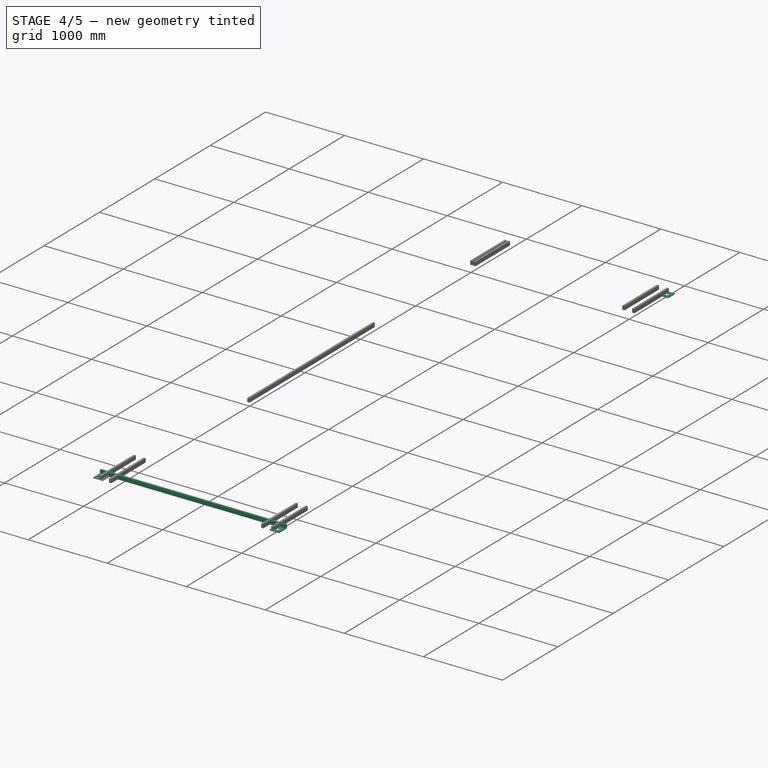
[diagram: stage 4 of 5 — iso view after this stage's code; geometry added in this stage tinted green]
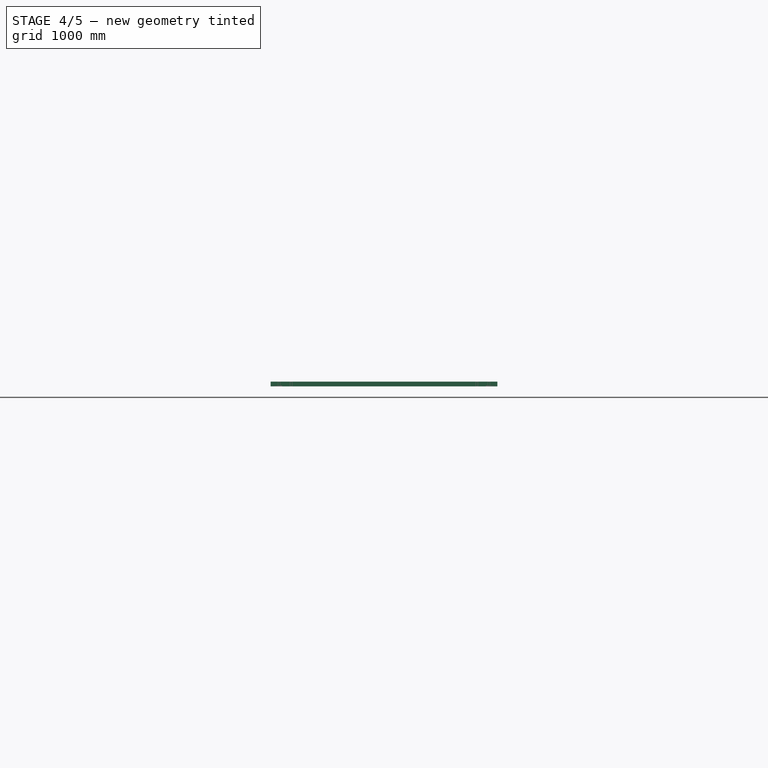
[diagram: stage 4 of 5 — front view after this stage's code; geometry added in this stage tinted green]
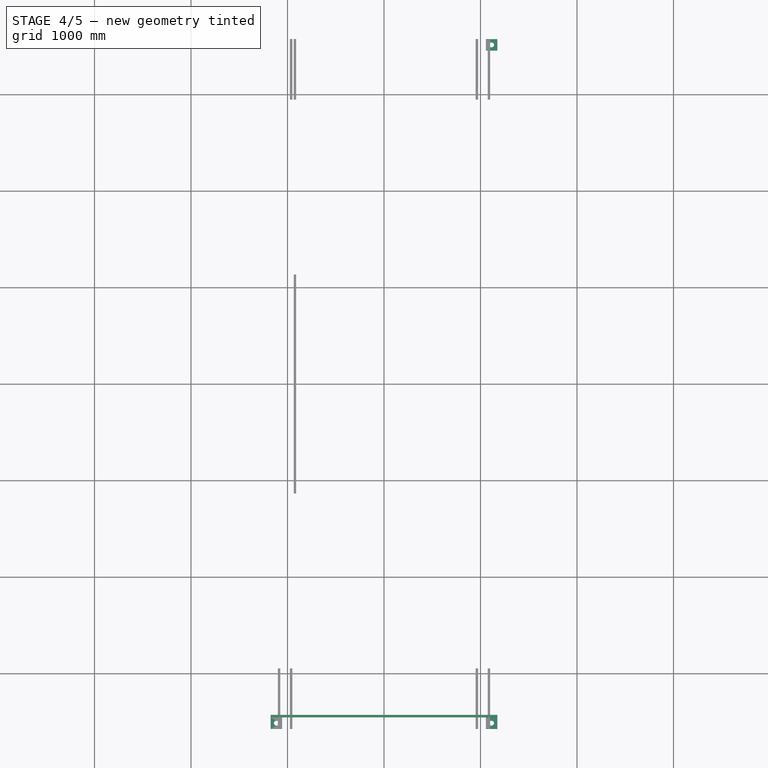
[diagram: stage 4 of 5 — top view after this stage's code; geometry added in this stage tinted green]
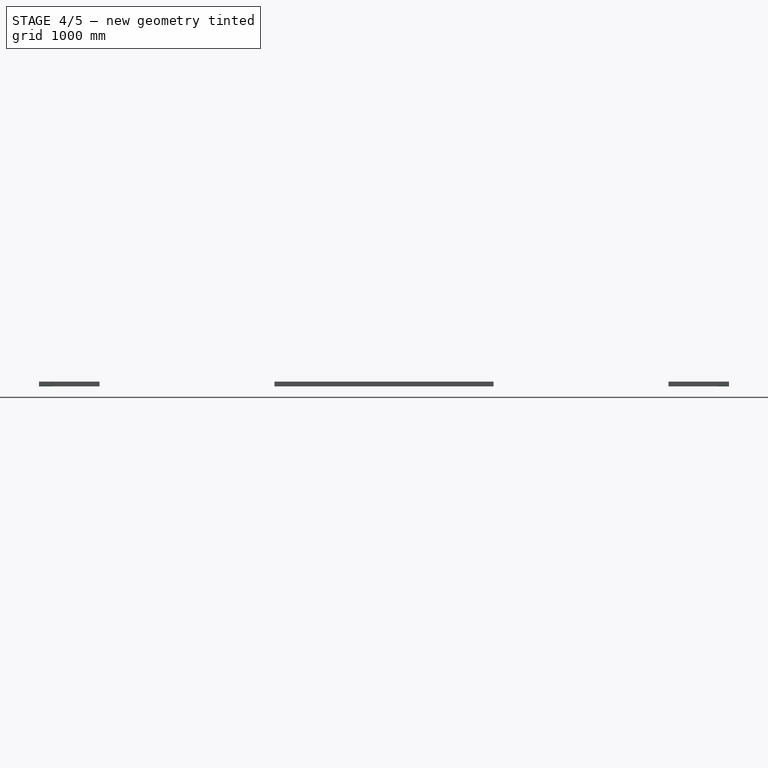
[diagram: stage 4 of 5 — right view after this stage's code; geometry added in this stage tinted green]
FEATURE [Part::Part2DObjectPython] Line006  # Draft 2D object (typed FeaturePython)
  Area = 0
  ChamferSize = 0
  Closed = false
  End = (1311.47,3442.5,0)
  FilletRadius = 0
  Length = 2486.47
  MakeFace = true
  Placement = pos=(1175,3442.5,0) rot=(0,0,1;0rad)
  Points = (2) [(-2350,0,0),(136.473,0,0)]
  Start = (-1175,3442.5,0)
  Subdivisions = 0
FEATURE [Part::Part2DObjectPython] Line007  # Draft 2D object (typed FeaturePython)
  Area = 0
  ChamferSize = 0
  Closed = false
  End = (1311.47,3587.5,0)
  FilletRadius = 0
  Length = 145
  MakeFace = true
  Placement = pos=(1311.47,3442.5,0) rot=(0,0,1;0rad)
  Points = (2) [(0,0,0),(0,145,0)]
  Start = (1311.47,3442.5,0)
  Subdivisions = 0
FEATURE [Part::FeaturePython] Structure015  label="BEAM - 50x25x3.0 RHS015"  # Arch/BIM 7 (typed FeaturePython)
  Base = -> Offset2D
  FaceMaker = 0
  Height = 100
  HorizontalArea = 103400
  IfcData = attributes={"GlobalId": {"name": "GlobalId", "type": "IfcGloballyUniqueId", "is_enum": false, "enum_values": []}, "Description": {"... (+475 chars omitted),+1 more (map truncated)
  IfcType = 7
  Length = 2350
  Material = -> Material
  MoveBase = false
  MoveWithHost = false
  Nodes = (2) [(-5.55112e-15,3587.5,-25),(-5.55112e-15,3587.5,2325)]
  NodesOffset = 0
  Normal = (0,0,0)
  PerimeterLength = 0
  Placement = pos=(1175,145.03,0) rot=(0,0,1;3.14159rad)
  PredefinedType = 0
  VerticalArea = 442628
  Width = 100
FEATURE [Part::FeaturePython] Panel001  label="LOCK PLATE CORNER001"  # Arch/BIM 99 (typed FeaturePython)
  Area = 12436.5
  CloneOf = -> Panel
  FaceMaker = 0
  HorizontalArea = 0
  IfcData = attributes={"GlobalId": {"name": "GlobalId", "type": "IfcGloballyUniqueId", "is_enum": false, "enum_values": []}, "Description": {"... (+448 chars omitted),+1 more (map truncated)
  IfcType = 99
  Length = 0
  Material = -> Material001
  MoveBase = false
  MoveWithHost = false
  Normal = (0,0,0)
  PerimeterLength = 0
  Placement = pos=(2230,0.04,0) rot=(0,0,1;0rad)
  PredefinedType = 0
  Sheets = 1
  Thickness = 10
  VerticalArea = 0
  WaveBottom = false
  WaveDirection = 0
  WaveHeight = 0
  WaveLength = 0
  WaveOffset = 0
  WaveType = 0
  Width = 0
FEATURE [Part::FeaturePython] Panel002  label="LOCK PLATE CORNER002"  # Arch/BIM 99 (typed FeaturePython)
  Area = 12436.5
  CloneOf = -> Panel
  FaceMaker = 0
  HorizontalArea = 0
  IfcData = attributes={"GlobalId": {"name": "GlobalId", "type": "IfcGloballyUniqueId", "is_enum": false, "enum_values": []}, "Description": {"... (+448 chars omitted),+1 more (map truncated)
  IfcType = 99
  Length = 0
  Material = -> Material001
  MoveBase = false
  MoveWithHost = false
  Normal = (0,0,0)
  PerimeterLength = 0
  Placement = pos=(0,-7030.01,0) rot=(0,0,1;0rad)
  PredefinedType = 0
  Sheets = 1
  Thickness = 10
  VerticalArea = 0
  WaveBottom = false
  WaveDirection = 0
  WaveHeight = 0
  WaveLength = 0
  WaveOffset = 0
  WaveType = 0
  Width = 0
FEATURE [Part::FeaturePython] Panel003  label="LOCK PLATE CORNER003"  # Arch/BIM 99 (typed FeaturePython)
  Area = 12436.5
  CloneOf = -> Panel
  FaceMaker = 0
  HorizontalArea = 0
  IfcData = attributes={"GlobalId": {"name": "GlobalId", "type": "IfcGloballyUniqueId", "is_enum": false, "enum_values": []}, "Description": {"... (+448 chars omitted),+1 more (map truncated)
  IfcType = 99
  Length = 0
  Material = -> Material001
  MoveBase = false
  MoveWithHost = false
  Normal = (0,0,0)
  PerimeterLength = 0
  Placement = pos=(2230,-7029.97,0) rot=(0,0,1;0rad)
  PredefinedType = 0
  Sheets = 1
  Thickness = 10
  VerticalArea = 0
  WaveBottom = false
  WaveDirection = 0
  WaveHeight = 0
  WaveLength = 0
  WaveOffset = 0
  WaveType = 0
  Width = 0
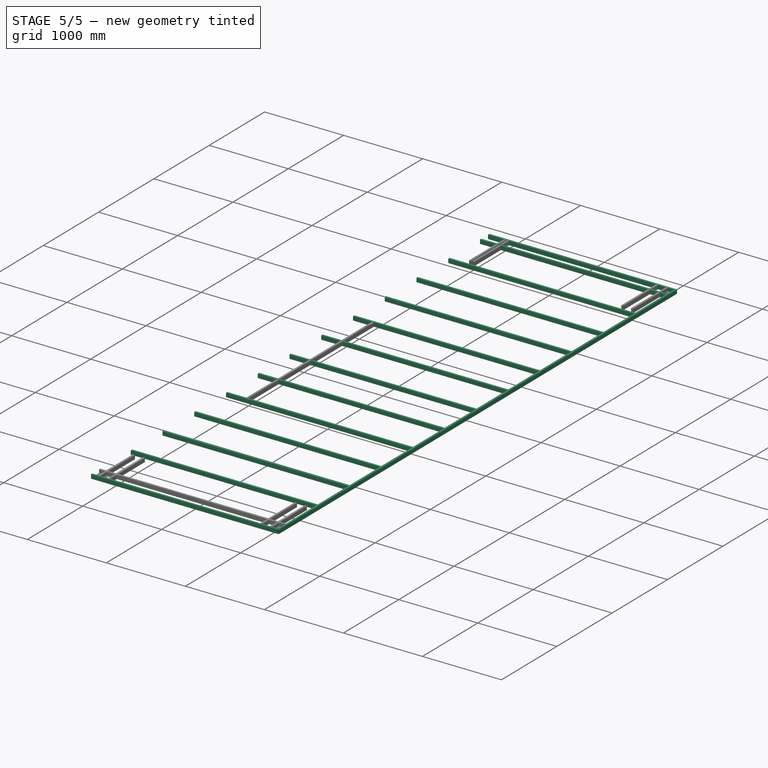
[diagram: stage 5 of 5 — iso view after this stage's code; geometry added in this stage tinted green]
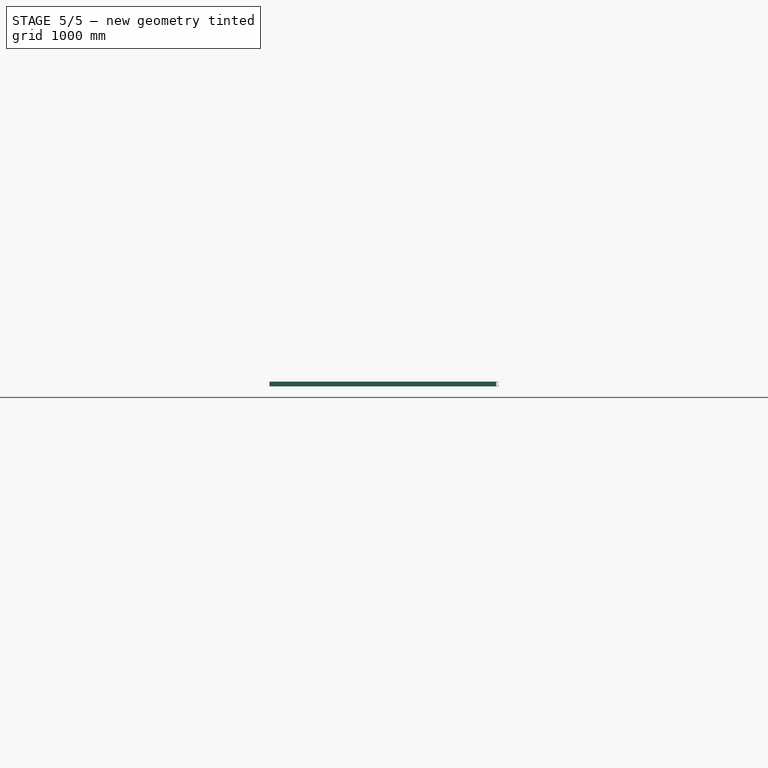
[diagram: stage 5 of 5 — front view after this stage's code; geometry added in this stage tinted green]
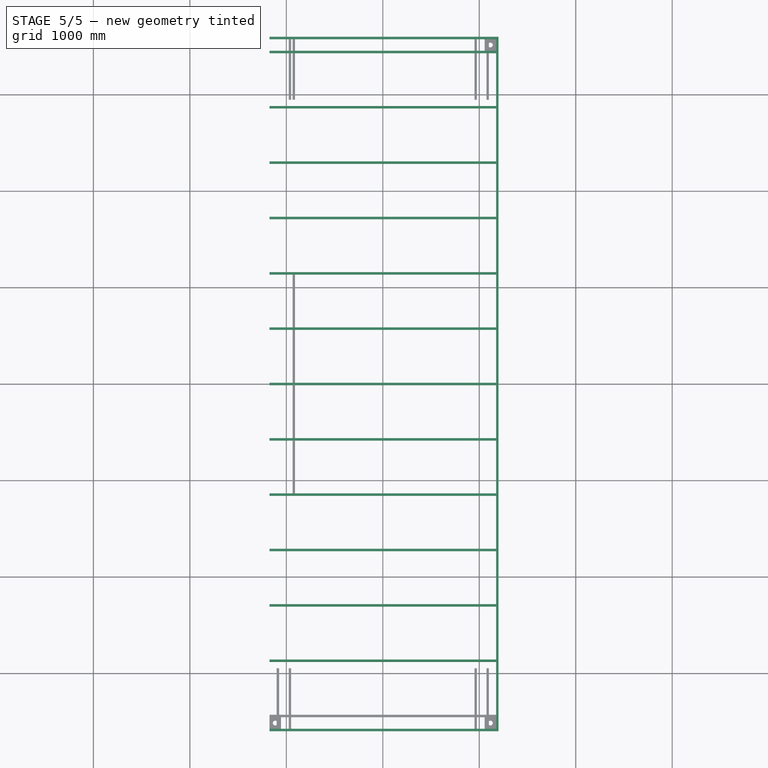
[diagram: stage 5 of 5 — top view after this stage's code; geometry added in this stage tinted green]
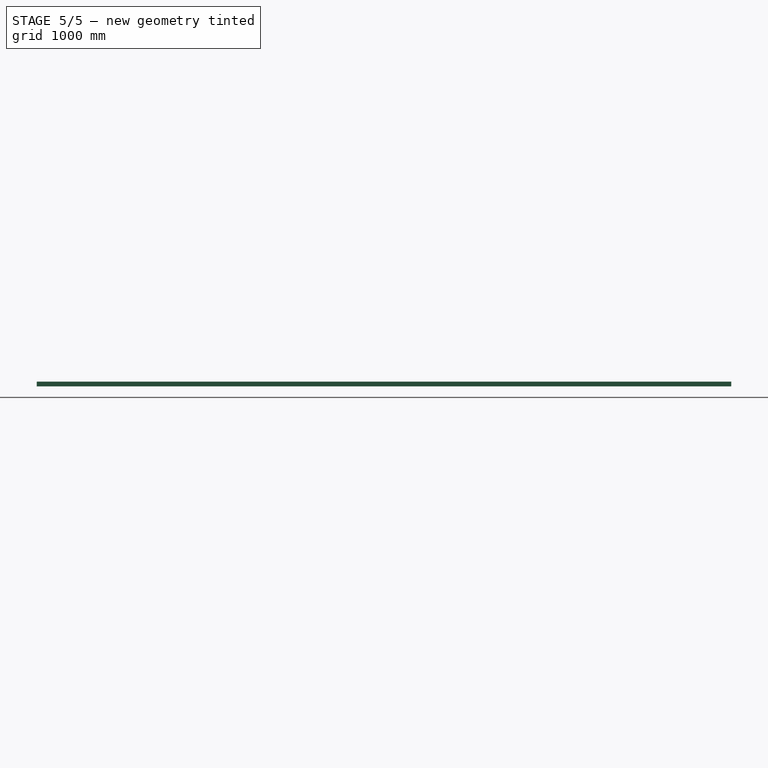
[diagram: stage 5 of 5 — right view after this stage's code; geometry added in this stage tinted green]
FEATURE [Part::FeaturePython] Structure002  label="BEAM - 50x25x3.0 RHS001"  # Arch/BIM 172 (typed FeaturePython)
  CloneOf = -> Structure
  FaceMaker = 0
  Height = 100
  HorizontalArea = 316800
  IfcData = attributes={"GlobalId": {"name": "GlobalId", "type": "IfcGloballyUniqueId", "is_enum": false, "enum_values": []}, "Description": {"... (+484 chars omitted),+1 more (map truncated)
  IfcType = 172
  Length = 7200
  Material = -> Material
  MoveBase = false
  MoveWithHost = false
  Nodes = (2) [(-1187.5,3.63567e-14,-25),(-1187.5,8.35717e-13,-7225)]
  NodesOffset = 0
  Normal = (0,0,0)
  PerimeterLength = 14600
  Placement = pos=(2375,-3600,9.42e-13) rot=(0,0,1;0rad)
  PredefinedType = 0
  VerticalArea = 1354428
  Width = 100
FEATURE [Part::FeaturePython] Structure004  label="BEAM - 50x25x3.0 RHS003"  # Arch/BIM 172 (typed FeaturePython)
  CloneOf = -> Structure003
  FaceMaker = 0
  Height = 100
  HorizontalArea = 103400
  IfcData = attributes={"GlobalId": {"name": "GlobalId", "type": "IfcGloballyUniqueId", "is_enum": false, "enum_values": []}, "Description": {"... (+484 chars omitted),+1 more (map truncated)
  IfcType = 172
  Length = 2350
  Material = -> Material
  MoveBase = false
  MoveWithHost = false
  Nodes = (2) [(-5.55112e-15,3587.5,-25),(-5.55112e-15,3587.5,2325)]
  NodesOffset = 0
  Normal = (0,0,0)
  PerimeterLength = 4750
  Placement = pos=(1175,-9.09e-13,0) rot=(0,0,1;3.14159rad)
  PredefinedType = 0
  VerticalArea = 442628
  Width = 100
FEATURE [App::DocumentObjectGroup] Group002  label="VERTICAL"
  Group = -> [Structure,Structure002,Group005]
FEATURE [Part::FeaturePython] Structure005  label="BEAM - 50x25x3.0 RHS004"  # Arch/BIM 7 (typed FeaturePython)
  Axis = -> Axis
  Base = -> Offset2D
  FaceMaker = 0
  Height = 100
  HorizontalArea = 0
  IfcData = attributes={"GlobalId": {"name": "GlobalId", "type": "IfcGloballyUniqueId", "is_enum": false, "enum_values": []}, "Description": {"... (+475 chars omitted),+1 more (map truncated)
  IfcType = 7
  Length = 2350
  Material = -> Material
  MoveBase = false
  MoveWithHost = false
  Nodes = (2) [(-5.55112e-15,3587.5,-25),(-5.55112e-15,3587.5,2325)]
  NodesOffset = 0
  Normal = (0,0,0)
  PerimeterLength = 0
  Placement = pos=(-578.946,3587.53,0) rot=(0,0,1;3.14159rad)
  PredefinedType = 0
  VerticalArea = 0
  Width = 100
FEATURE [App::DocumentObjectGroup] Group006  label="ENDS"
  Group = -> [Structure003,Structure004]
FEATURE [App::DocumentObjectGroup] Group003  label="HORIZONTAL"
  Group = -> [Group006,Structure005]
FEATURE [App::DocumentObjectGroup] Group001  label="FLAT DECK STRUCTURE"
  Group = -> [Group002,Group003]
FEATURE [Part::Part2DObjectPython] Rectangle019  # Draft 2D object (typed FeaturePython)
  Area = 14400
  ChamferSize = 0
  Columns = 1
  FilletRadius = 0
  Height = 120
  Length = 120
  MakeFace = true
  Placement = pos=(-904.146,3404.36,0) rot=(0,0,1;0rad)
  Rows = 1
FEATURE [Part::Part2DObjectPython] Rectangle020  # Draft 2D object (typed FeaturePython)
  Area = 14400
  ChamferSize = 0
  Columns = 1
  FilletRadius = 0
  Height = 120
  Length = 120
  MakeFace = true
  Placement = pos=(-1175,3455,0) rot=(0,0,1;0rad)
  Rows = 1
FEATURE [Part::Part2DObjectPython] Rectangle021  # Draft 2D object (typed FeaturePython)
  Area = 14400
  ChamferSize = 0
  Columns = 1
  FilletRadius = 0
  Height = 120
  Length = 120
  MakeFace = true
  Placement = pos=(-1175,-3574.97,0) rot=(0,0,1;0rad)
  Rows = 1
FEATURE [Part::FeaturePython] Structure014  label="BEAM - 50x25x3.0 RHS014"  # Arch/BIM 7 (typed FeaturePython)
  Base = -> Offset2D
  FaceMaker = 0
  Height = 100
  HorizontalArea = 103400
  IfcData = attributes={"GlobalId": {"name": "GlobalId", "type": "IfcGloballyUniqueId", "is_enum": false, "enum_values": []}, "Description": {"... (+475 chars omitted),+1 more (map truncated)
  IfcType = 7
  Length = 2350
  Material = -> Material
  MoveBase = false
  MoveWithHost = false
  Nodes = (2) [(-5.55112e-15,3587.5,-25),(-5.55112e-15,3587.5,2325)]
  NodesOffset = 0
  Normal = (0,0,0)
  PerimeterLength = 0
  Placement = pos=(1175,7030,0) rot=(0,0,1;3.14159rad)
  PredefinedType = 0
  VerticalArea = 442628
  Width = 100
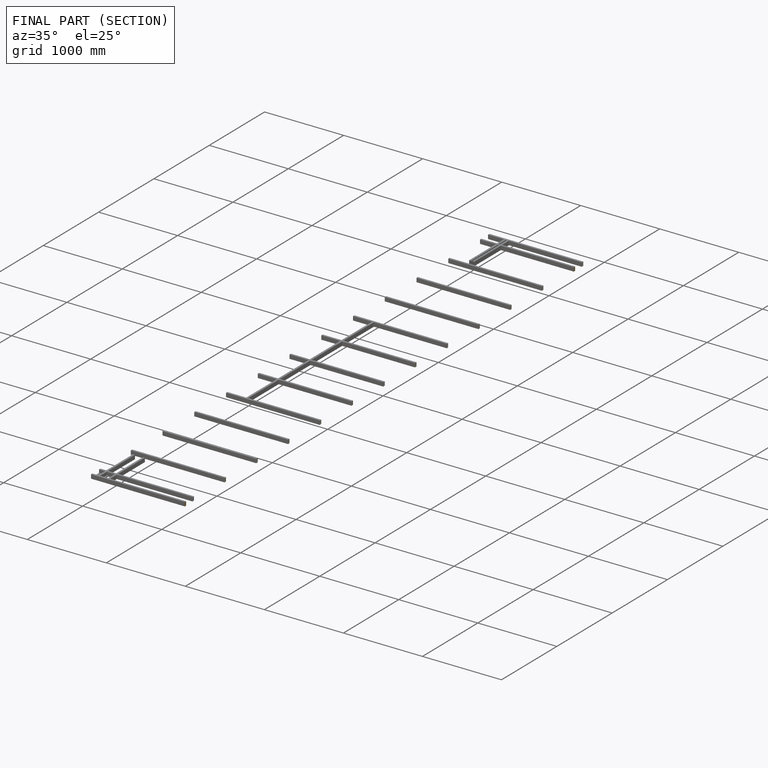
[diagram: finished part — half-section view (interior)]
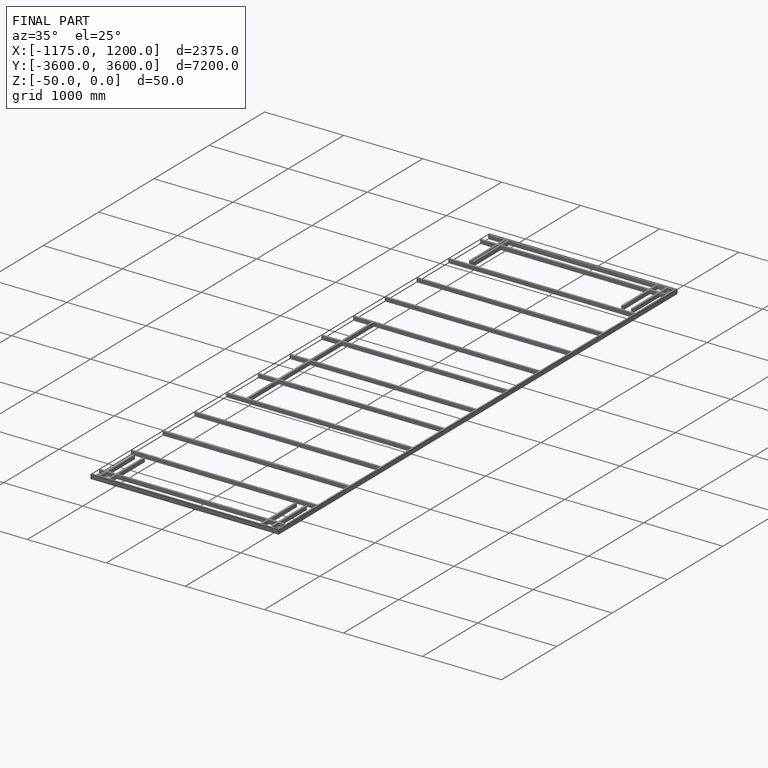
[diagram: finished part — iso view with bounding-box wireframe]
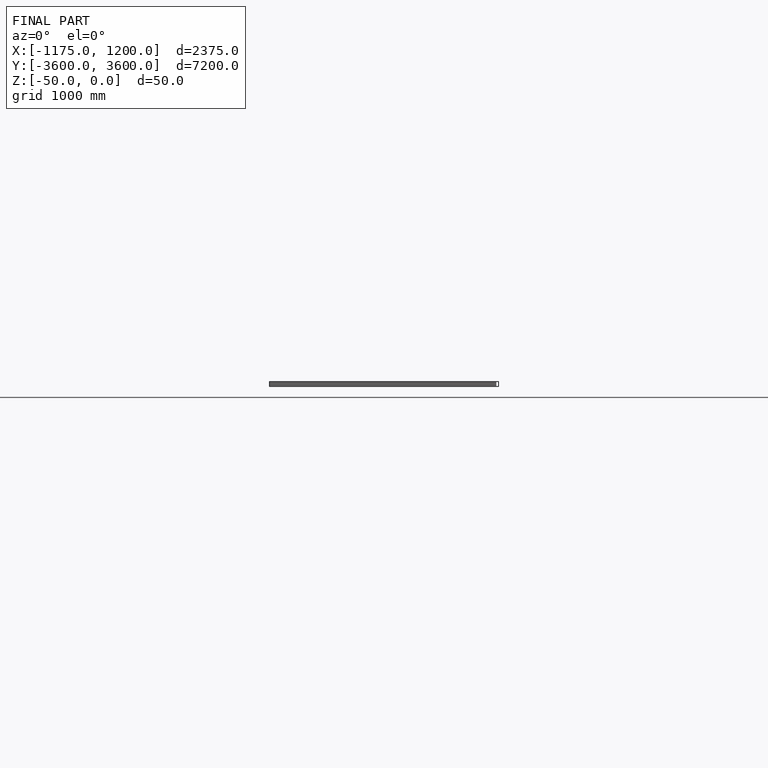
[diagram: finished part — front view with bounding-box wireframe]
